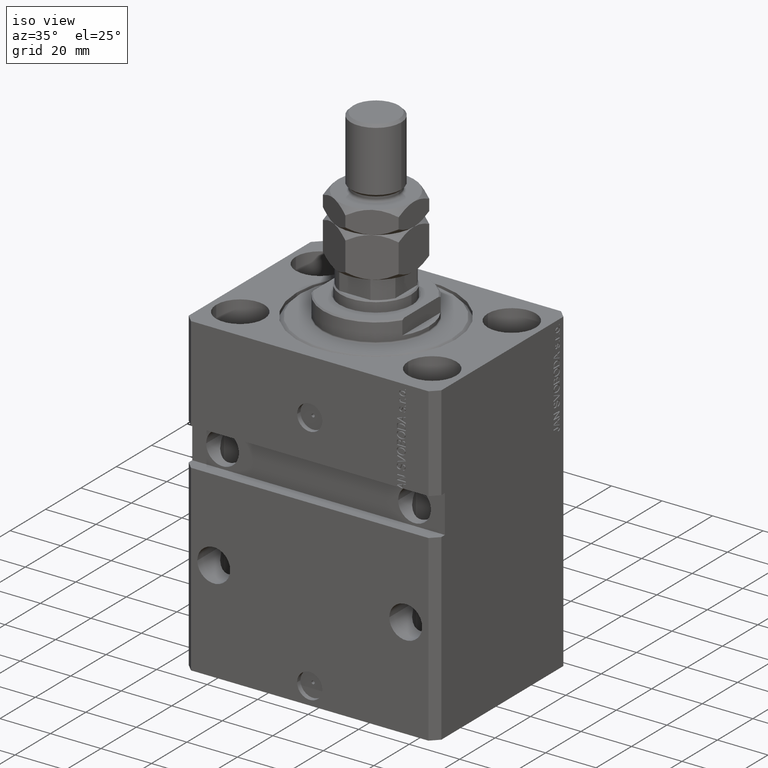
[diagram: clean part render]
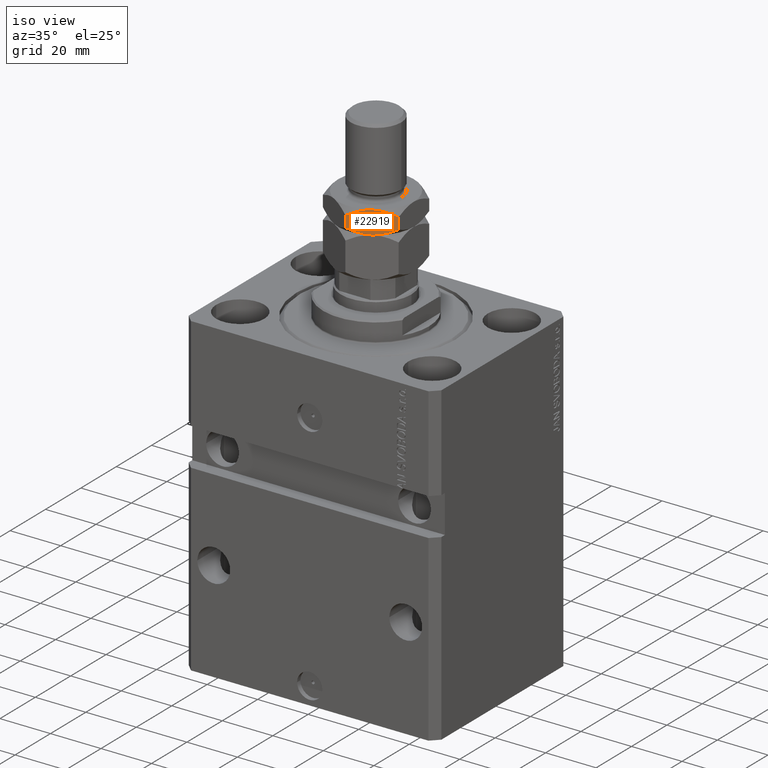
[diagram: same view with one face highlighted and labeled with its STEP entity id]
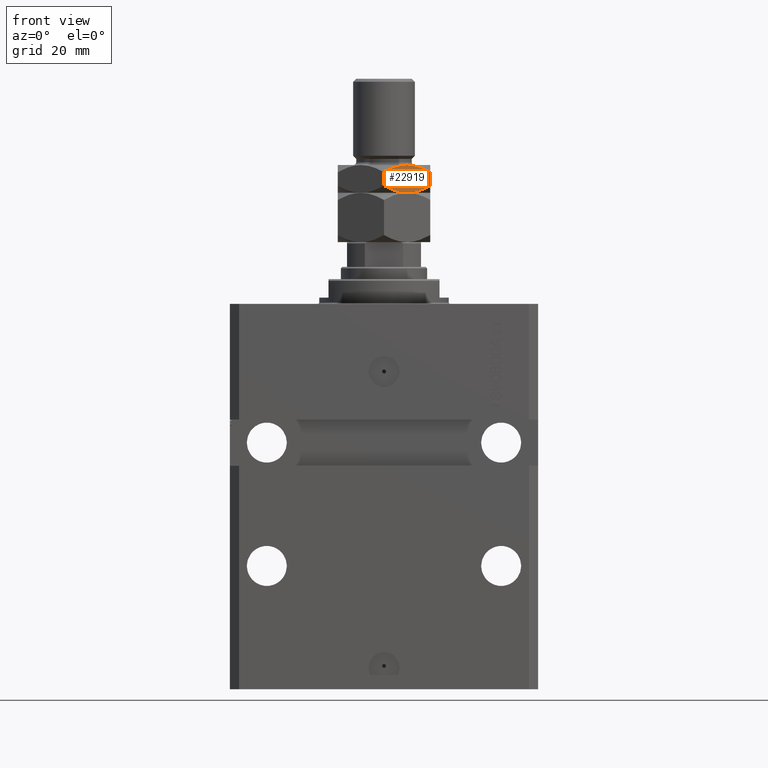
[diagram: same view with one face highlighted and labeled with its STEP entity id]
A machine part, iso view. The second image highlights one B-rep face of the part: STEP entity #22919.
A second angle (front view) of the same face is appended — the face is thin or edge-on in the first view.
In plain terms, the highlighted planar face has unit normal (-0.5, 0.866, 0).
Its self-contained STEP definition (entity closure, byte-faithful):
#587 = CARTESIAN_POINT ( 'NONE',  ( 12.62116548881249400, -10.03367478323606221, 17.06448606774401000 ) ) ;
#1066 = CARTESIAN_POINT ( 'NONE',  ( 4.913081180497407274, -14.48393933357810681, 16.23032992193922297 ) ) ;
#1076 = VECTOR ( 'NONE', #15212, 1000.000000000000000 ) ;
#3274 = VERTEX_POINT ( 'NONE', #10444 ) ;
#3340 = ORIENTED_EDGE ( 'NONE', *, *, #4632, .F. ) ;
#3891 = ORIENTED_EDGE ( 'NONE', *, *, #18872, .F. ) ;
#4099 = CARTESIAN_POINT ( 'NONE',  ( 8.156876182308245404, -12.61113341608665550, 16.00000000000000355 ) ) ;
#4109 = CARTESIAN_POINT ( 'NONE',  ( 2.552051520948485970E-15, -17.32050807568877104, 25.00000000000000000 ) ) ;
#4272 = CARTESIAN_POINT ( 'NONE',  ( 3.096598485618407139E-15, -17.32050807568877104, 22.67949192431123606 ) ) ;
#4632 = EDGE_CURVE ( 'NONE', #27898, #3274, #6048, .T. ) ;
#4832 = CARTESIAN_POINT ( 'NONE',  ( 7.499999999999993783, -12.99038105676658006, 16.00000000000000000 ) ) ;
#5026 = CARTESIAN_POINT ( 'NONE',  ( 2.378834511187506440, -15.94708733029709080, 23.93551393225599000 ) ) ;
#6048 = B_SPLINE_CURVE_WITH_KNOTS ( 'NONE', 3,
 ( #4832, #42333, #1066, #15683, #47119, #15930 ),
 .UNSPECIFIED., .F., .F.,
 ( 4, 2, 4 ),
 ( 0.008977392552884455937, 0.01343452311421657053, 0.01789165367554868338 ),
 .UNSPECIFIED. ) ;
#6127 = CARTESIAN_POINT ( 'NONE',  ( 8.804550678576914535, -12.23719837131868715, 25.00000000000000000 ) ) ;
#8301 = CARTESIAN_POINT ( 'NONE',  ( 6.176419610670697224, -13.75455055083995681, 24.94046462602529957 ) ) ;
#9321 = B_SPLINE_CURVE_WITH_KNOTS ( 'NONE', 3,
 ( #15449, #26503, #587, #46389, #30281, #37829, #4099, #31282 ),
 .UNSPECIFIED., .F., .F.,
 ( 4, 2, 2, 4 ),
 ( 2.544309033627217716E-07, 0.004488823491893913047, 0.006733108022389184058, 0.008977392552884455937 ),
 .UNSPECIFIED. ) ;
#10444 = CARTESIAN_POINT ( 'NONE',  ( 2.765920654496385348E-15, -17.32050807568877104, 18.32050807568876749 ) ) ;
#12624 = CARTESIAN_POINT ( 'NONE',  ( 2.552051520948485970E-15, -17.32050807568877104, 25.00000000000000000 ) ) ;
#12915 = CARTESIAN_POINT ( 'NONE',  ( 7.499999999999993783, -12.99038105676658006, 16.00000000000000000 ) ) ;
#14617 = VERTEX_POINT ( 'NONE', #18351 ) ;
#15212 = DIRECTION ( 'NONE',  ( -0.000000000000000000, -0.000000000000000000, -1.000000000000000000 ) ) ;
#15221 = B_SPLINE_CURVE_WITH_KNOTS ( 'NONE', 3,
 ( #4272, #39498, #5026, #47059, #34974, #8301, #15871, #27678 ),
 .UNSPECIFIED., .F., .F.,
 ( 4, 2, 2, 4 ),
 ( 2.544309033651680028E-07, 0.004488823491893906975, 0.006733108022389177987, 0.008977392552884448998 ),
 .UNSPECIFIED. ) ;
#15449 = CARTESIAN_POINT ( 'NONE',  ( 15.00000000000000000, -8.660254037844381969, 18.32050807568876394 ) ) ;
#15682 = ORIENTED_EDGE ( 'NONE', *, *, #17832, .F. ) ;
#15683 = CARTESIAN_POINT ( 'NONE',  ( 2.383929548160350187, -15.94414570932928932, 17.06047903137087829 ) ) ;
#15871 = CARTESIAN_POINT ( 'NONE',  ( 6.843123817691750155, -13.36962869744649751, 25.00000000000000355 ) ) ;
#15930 = CARTESIAN_POINT ( 'NONE',  ( 2.765920654496385348E-15, -17.32050807568877104, 18.32050807568876749 ) ) ;
#16086 = EDGE_CURVE ( 'NONE', #24468, #14617, #34323, .T. ) ;
#16148 = PLANE ( 'NONE',  #42698 ) ;
#17832 = EDGE_CURVE ( 'NONE', #49455, #24468, #23229, .T. ) ;
#18351 = CARTESIAN_POINT ( 'NONE',  ( 15.00000000000000000, -8.660254037844381969, 18.32050807568876394 ) ) ;
#18504 = CARTESIAN_POINT ( 'NONE',  ( 14.99999999999999822, -8.660254037844383745, 22.67949192431123961 ) ) ;
#18872 = EDGE_CURVE ( 'NONE', #14617, #27898, #9321, .T. ) ;
#21479 = CARTESIAN_POINT ( 'NONE',  ( 10.08691881950259273, -11.49682277995504798, 24.76967007806078414 ) ) ;
#22919 = ADVANCED_FACE ( 'NONE', ( #35758 ), #16148, .F. ) ;
#22986 = LINE ( 'NONE', #4109, #1076 ) ;
#23229 = B_SPLINE_CURVE_WITH_KNOTS ( 'NONE', 3,
 ( #25254, #6127, #21479, #32800, #25994, #29522 ),
 .UNSPECIFIED., .F., .F.,
 ( 4, 2, 4 ),
 ( 0.008977392552884448998, 0.01343452311421656706, 0.01789165367554868338 ),
 .UNSPECIFIED. ) ;
#24468 = VERTEX_POINT ( 'NONE', #18504 ) ;
#24797 = CARTESIAN_POINT ( 'NONE',  ( 3.096598485618407139E-15, -17.32050807568877104, 22.67949192431123606 ) ) ;
#24857 = EDGE_CURVE ( 'NONE', #35241, #49455, #15221, .T. ) ;
#25254 = CARTESIAN_POINT ( 'NONE',  ( 7.500000000000001776, -12.99038105676657473, 25.00000000000000000 ) ) ;
#25994 = CARTESIAN_POINT ( 'NONE',  ( 13.82525345580783771, -9.338494271363309451, 23.35773215783022039 ) ) ;
#26265 = CARTESIAN_POINT ( 'NONE',  ( 14.99999999999999822, -8.660254037844381969, 25.00000000000000000 ) ) ;
#26503 = CARTESIAN_POINT ( 'NONE',  ( 13.82389157469336283, -9.339280553791359907, 17.64148155974178778 ) ) ;
#27678 = CARTESIAN_POINT ( 'NONE',  ( 7.500000000000001776, -12.99038105676657473, 25.00000000000000000 ) ) ;
#27898 = VERTEX_POINT ( 'NONE', #12915 ) ;
#29522 = CARTESIAN_POINT ( 'NONE',  ( 14.99999999999999822, -8.660254037844383745, 22.67949192431123961 ) ) ;
#30281 = CARTESIAN_POINT ( 'NONE',  ( 10.11832554202262280, -11.47869010025374514, 16.28380266194629655 ) ) ;
#30354 = EDGE_CURVE ( 'NONE', #35241, #3274, #22986, .T. ) ;
#31282 = CARTESIAN_POINT ( 'NONE',  ( 7.499999999999993783, -12.99038105676658006, 16.00000000000000000 ) ) ;
#31484 = DIRECTION ( 'NONE',  ( -0.5000000000000002220, 0.8660254037844385966, 0.000000000000000000 ) ) ;
#31987 = VECTOR ( 'NONE', #49690, 1000.000000000000000 ) ;
#32800 = CARTESIAN_POINT ( 'NONE',  ( 12.61607045183964715, -10.03661640420386369, 23.93952096862911461 ) ) ;
#34323 = LINE ( 'NONE', #26265, #31987 ) ;
#34974 = CARTESIAN_POINT ( 'NONE',  ( 4.881674457977378978, -14.50207201327941142, 24.71619733805371055 ) ) ;
#35241 = VERTEX_POINT ( 'NONE', #24797 ) ;
#35758 = FACE_OUTER_BOUND ( 'NONE', #47320, .T. ) ;
#37829 = CARTESIAN_POINT ( 'NONE',  ( 8.823580389329300999, -12.22621156269319798, 16.05953537397470043 ) ) ;
#38454 = ORIENTED_EDGE ( 'NONE', *, *, #16086, .F. ) ;
#39498 = CARTESIAN_POINT ( 'NONE',  ( 1.176108425306644945, -16.64148155974179488, 23.35851844025819801 ) ) ;
#39782 = DIRECTION ( 'NONE',  ( -0.8660254037844384856, -0.5000000000000001110, 0.000000000000000000 ) ) ;
#42333 = CARTESIAN_POINT ( 'NONE',  ( 6.195449321423082800, -13.74356374221446586, 16.00000000000000355 ) ) ;
#42698 = AXIS2_PLACEMENT_3D ( 'NONE', #12624, #31484, #39782 ) ;
#44483 = ORIENTED_EDGE ( 'NONE', *, *, #24857, .F. ) ;
#45688 = ORIENTED_EDGE ( 'NONE', *, *, #30354, .T. ) ;
#46389 = CARTESIAN_POINT ( 'NONE',  ( 10.75222765045650775, -11.11270654730956409, 16.44757140851302779 ) ) ;
#47059 = CARTESIAN_POINT ( 'NONE',  ( 4.247772349543486925, -14.86805556622359070, 24.55242859148698642 ) ) ;
#47119 = CARTESIAN_POINT ( 'NONE',  ( 1.174746544192163400, -16.64226784216984001, 17.64226784216978317 ) ) ;
#47320 = EDGE_LOOP ( 'NONE', ( #3891, #38454, #15682, #44483, #45688, #3340 ) ) ;
#47542 = CARTESIAN_POINT ( 'NONE',  ( 7.500000000000001776, -12.99038105676657473, 25.00000000000000000 ) ) ;
#49455 = VERTEX_POINT ( 'NONE', #47542 ) ;
#49690 = DIRECTION ( 'NONE',  ( -0.000000000000000000, -0.000000000000000000, -1.000000000000000000 ) ) ;